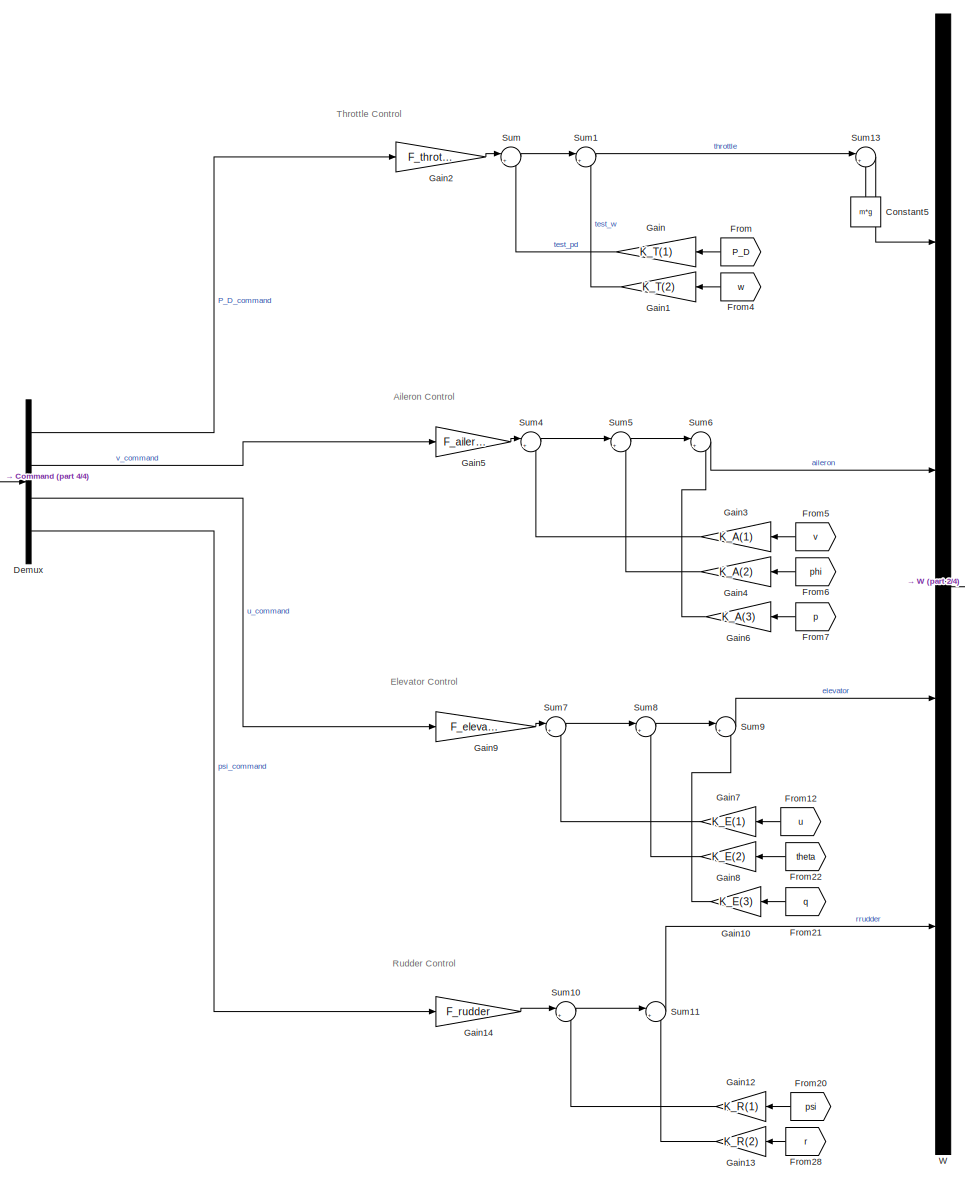
[diagram: root canvas - part 1/4, left side, full height]
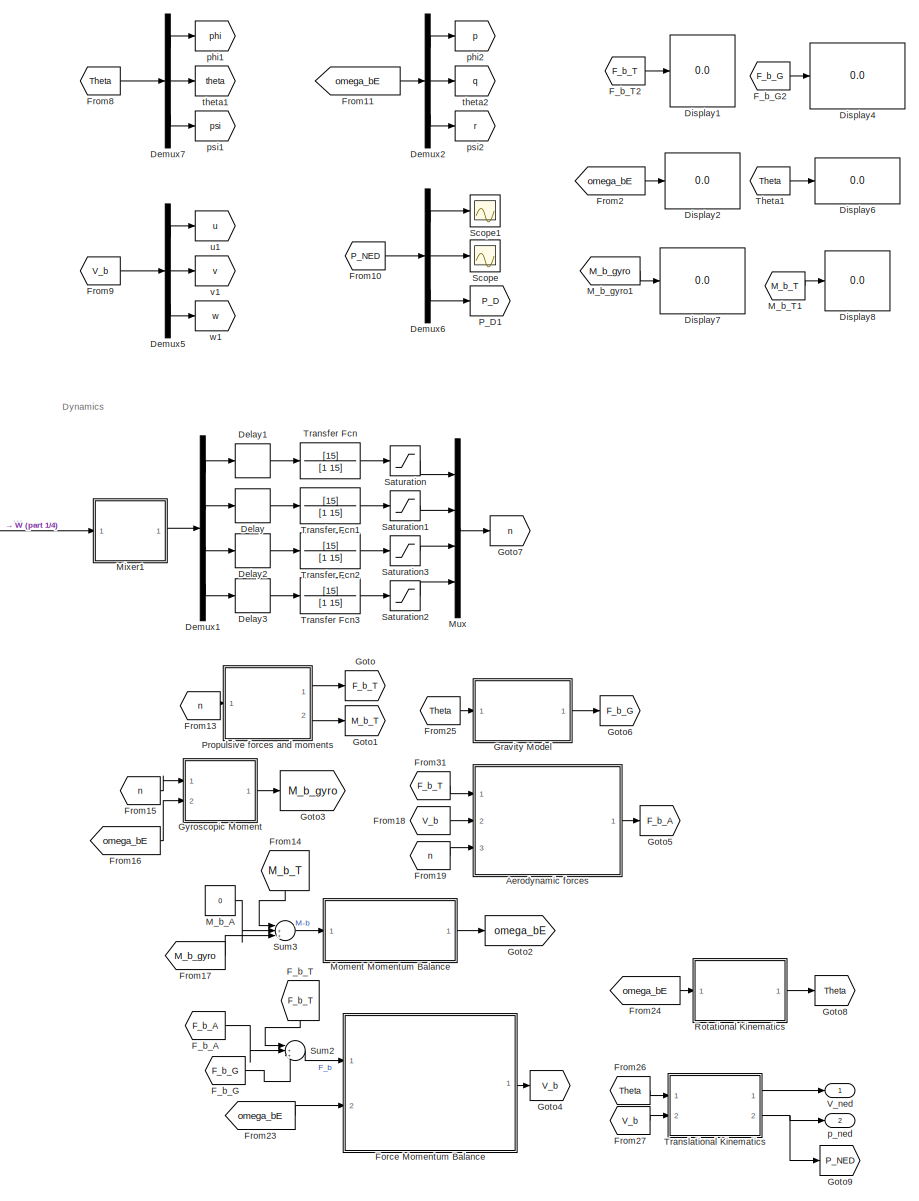
[diagram: root canvas - part 2/4, center side, full height]
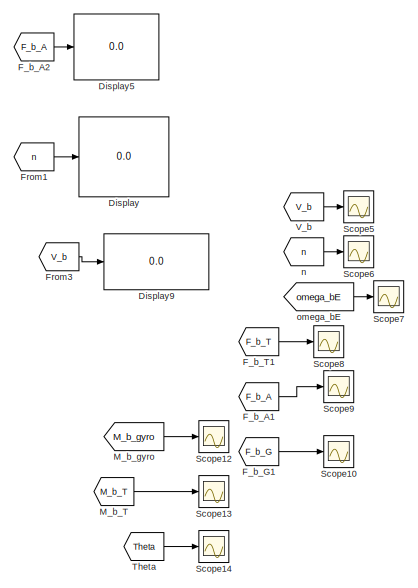
[diagram: root canvas - part 3/4, top right region]
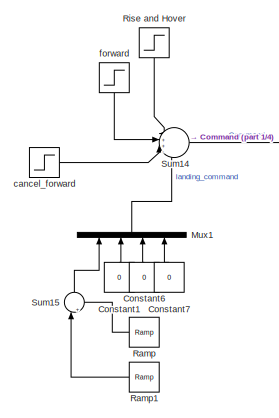
[diagram: root canvas - part 4/4, middle left region]
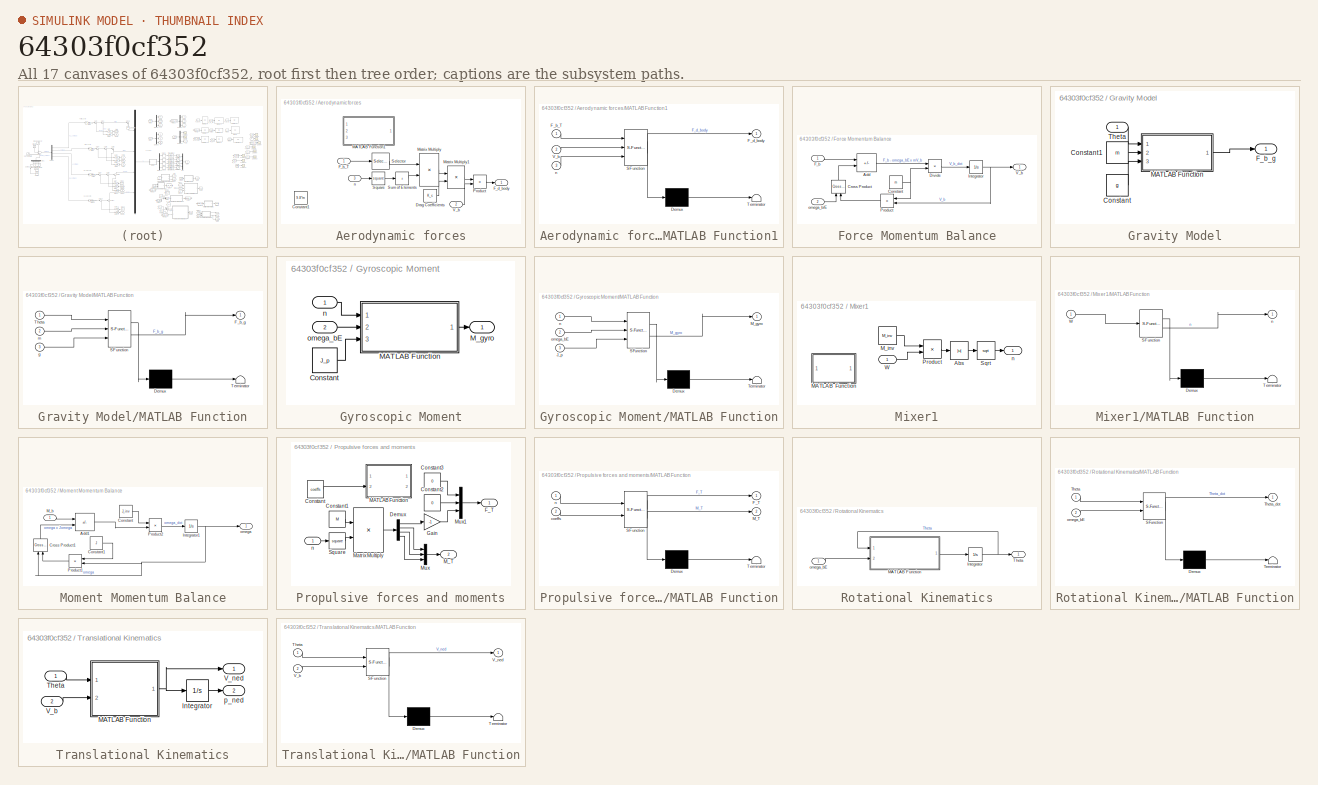
[diagram: thumbnail index - all 17 canvases of the model, root first then tree order]
MODEL slx_64303f0cf352
KIND model
CONFIG AbsTol = auto
CONFIG EnableMultiTasking = off
CONFIG FixedStep = auto
CONFIG MaxStep = auto
CONFIG MinStep = auto
CONFIG RelTol = 1e-3
CONFIG SampleTimeConstraint = Unconstrained
CONFIG SolverName = VariableStepAuto
CONFIG StartTime = 0.0
CONFIG StopTime = 30
BLOCK [SubSystem] Aerodynamic forces
  Ports = [3, 1]
  RequestExecContextInheritance = off
BLOCK [Constant] Aerodynamic forces/Constant1
  Commented = on
  Value = 9.8*m
BLOCK [Constant] Aerodynamic forces/Drag Coefficients
  Value = K_c
BLOCK [Inport] Aerodynamic forces/F_b_T
BLOCK [Outport] Aerodynamic forces/F_d_body
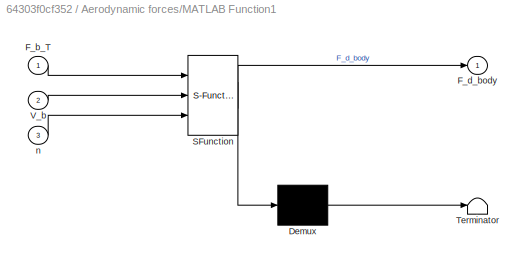
BLOCK [SubSystem] Aerodynamic forces/MATLAB Function1
  Commented = on
  ErrorFcn = Stateflow.Translate.translate
  PermitHierarchicalResolution = ExplicitOnly
  Ports = [3, 1]
  RequestExecContextInheritance = off
  SFBlockType = MATLAB Function
  TreatAsAtomicUnit = on
BLOCK [Demux] Aerodynamic forces/MATLAB Function1/ Demux 
  Outputs = 1
  Ports = [1, 1]
BLOCK [S-Function] Aerodynamic forces/MATLAB Function1/ SFunction 
  EnableBusSupport = on
  FunctionName = sf_sfun
  PortCounts = [3 2]
  Ports = [3, 2]
  SFcnIsStateOwnerBlock = off
  SFunctionDeploymentMode = off
  Tag = Stateflow S-Function 10
BLOCK [Terminator] Aerodynamic forces/MATLAB Function1/ Terminator 
BLOCK [Inport] Aerodynamic forces/MATLAB Function1/F_b_T
BLOCK [Outport] Aerodynamic forces/MATLAB Function1/F_d_body
BLOCK [Inport] Aerodynamic forces/MATLAB Function1/V_b
  Port = 2
BLOCK [Inport] Aerodynamic forces/MATLAB Function1/n
  Port = 3
BLOCK [Product] Aerodynamic forces/Matrix Multiply
  Ports = [2, 1]
BLOCK [Product] Aerodynamic forces/Matrix Multiply1
  Multiplication = Matrix(*)
  Ports = [2, 1]
BLOCK [Product] Aerodynamic forces/Product
  Ports = [2, 1]
BLOCK [Selector] Aerodynamic forces/Selector
  IndexOptions = Index vector (dialog)
  Indices = [3]
  InputPortWidth = 3
  OutputSizes = 1
  Ports = [1, 1]
BLOCK [Math] Aerodynamic forces/Square
  Operator = square
  Ports = [1, 1]
BLOCK [Sum] Aerodynamic forces/Sum of Elements
  IconShape = rectangular
  Inputs = +
  Ports = [1, 1]
BLOCK [Inport] Aerodynamic forces/V_b
  Port = 2
BLOCK [Inport] Aerodynamic forces/n
  Port = 3
BLOCK [Constant] Constant1
  NameLocation = right
  Value = 0
BLOCK [Constant] Constant5
  NameLocation = right
  Value = m*g
BLOCK [Constant] Constant6
  NameLocation = right
  Value = 0
BLOCK [Constant] Constant7
  NameLocation = right
  Value = 0
BLOCK [Delay] Delay
  InputPortMap = u0
  Ports = [1, 1]
  SampleTime = 1/200
BLOCK [Delay] Delay1
  InputPortMap = u0
  Ports = [1, 1]
  SampleTime = 1/200
BLOCK [Delay] Delay2
  InputPortMap = u0
  Ports = [1, 1]
  SampleTime = 1/200
BLOCK [Delay] Delay3
  InputPortMap = u0
  Ports = [1, 1]
  SampleTime = 1/200
BLOCK [Demux] Demux
  Ports = [1, 4]
BLOCK [Demux] Demux1
  Ports = [1, 4]
BLOCK [Demux] Demux2
  Outputs = 3
  Ports = [1, 3]
BLOCK [Demux] Demux5
  Outputs = 3
  Ports = [1, 3]
BLOCK [Demux] Demux6
  Outputs = 3
  Ports = [1, 3]
BLOCK [Demux] Demux7
  Outputs = 3
  Ports = [1, 3]
BLOCK [Display] Display
  Decimation = 1
  Ports = [1]
BLOCK [Display] Display1
  Decimation = 1
  Ports = [1]
BLOCK [Display] Display2
  Decimation = 1
  Ports = [1]
BLOCK [Display] Display4
  Decimation = 1
  Ports = [1]
BLOCK [Display] Display5
  Decimation = 1
  Ports = [1]
BLOCK [Display] Display6
  Decimation = 1
  Ports = [1]
BLOCK [Display] Display7
  Decimation = 1
  Ports = [1]
BLOCK [Display] Display8
  Decimation = 1
  Ports = [1]
BLOCK [Display] Display9
  Decimation = 1
  Ports = [1]
BLOCK [From] F_b_A
  GotoTag = F_b_A
BLOCK [From] F_b_A1
  GotoTag = F_b_A
BLOCK [From] F_b_A2
  GotoTag = F_b_A
BLOCK [From] F_b_G
  GotoTag = F_b_G
BLOCK [From] F_b_G1
  GotoTag = F_b_G
BLOCK [From] F_b_G2
  GotoTag = F_b_G
BLOCK [From] F_b_T
  GotoTag = F_b_T
  NameLocation = left
BLOCK [From] F_b_T1
  GotoTag = F_b_T
BLOCK [From] F_b_T2
  GotoTag = F_b_T
BLOCK [SubSystem] Force Momentum Balance
  Ports = [2, 1]
  RequestExecContextInheritance = off
BLOCK [Sum] Force Momentum Balance/Add
  IconShape = rectangular
  Inputs = +-
  Ports = [2, 1]
BLOCK [Constant] Force Momentum Balance/Constant
  Value = m
BLOCK [Reference] Force Momentum Balance/Cross Product  REF=vrlib/Utilities/Cross Product
  NameLocation = right
  Ports = [2, 1]
  SourceBlock = vrlib/Utilities/Cross Product
  SourceProductBaseCode = SL
  SourceType = Cross Product
BLOCK [Product] Force Momentum Balance/Divide
  Inputs = */
  Ports = [2, 1]
BLOCK [Inport] Force Momentum Balance/F_b
BLOCK [Integrator] Force Momentum Balance/Integrator
  AttributesFormatString = %<InitialCondition>
  InitialCondition = V_b_0
  Ports = [1, 1]
BLOCK [Product] Force Momentum Balance/Product
  NameLocation = top
  Ports = [2, 1]
BLOCK [Outport] Force Momentum Balance/V_b
BLOCK [Inport] Force Momentum Balance/omega_b//E
  Port = 2
BLOCK [From] From
  GotoTag = P_D
  NameLocation = top
BLOCK [From] From1
  GotoTag = n
BLOCK [From] From10
  GotoTag = P_NED
BLOCK [From] From11
  GotoTag = omega_bE
BLOCK [From] From12
  GotoTag = u
  NameLocation = top
BLOCK [From] From13
  GotoTag = n
BLOCK [From] From14
  GotoTag = M_b_T
  NameLocation = left
BLOCK [From] From15
  GotoTag = n
BLOCK [From] From16
  GotoTag = omega_bE
BLOCK [From] From17
  GotoTag = M_b_gyro
BLOCK [From] From18
  GotoTag = V_b
BLOCK [From] From19
  GotoTag = n
BLOCK [From] From2
  GotoTag = omega_bE
BLOCK [From] From20
  GotoTag = psi
  NameLocation = top
BLOCK [From] From21
  GotoTag = q
  NameLocation = top
BLOCK [From] From22
  GotoTag = theta
  NameLocation = top
BLOCK [From] From23
  GotoTag = omega_bE
BLOCK [From] From24
  GotoTag = omega_bE
BLOCK [From] From25
  GotoTag = Theta
BLOCK [From] From26
  GotoTag = Theta
BLOCK [From] From27
  GotoTag = V_b
BLOCK [From] From28
  GotoTag = r
  NameLocation = top
BLOCK [From] From3
  GotoTag = V_b
BLOCK [From] From31
  GotoTag = F_b_T
BLOCK [From] From4
  GotoTag = w
  NameLocation = top
BLOCK [From] From5
  GotoTag = v
  NameLocation = top
BLOCK [From] From6
  GotoTag = phi
  NameLocation = top
BLOCK [From] From7
  GotoTag = p
  NameLocation = top
BLOCK [From] From8
  GotoTag = Theta
BLOCK [From] From9
  GotoTag = V_b
BLOCK [Gain] Gain
  Gain = K_T(1)
BLOCK [Gain] Gain1
  Gain = K_T(2)
BLOCK [Gain] Gain10
  Gain = K_E(3)
BLOCK [Gain] Gain12
  Gain = K_R(1)
BLOCK [Gain] Gain13
  Gain = K_R(2)
BLOCK [Gain] Gain14
  Gain = F_rudder
BLOCK [Gain] Gain2
  Gain = F_throttle
BLOCK [Gain] Gain3
  Gain = K_A(1)
BLOCK [Gain] Gain4
  Gain = K_A(2)
BLOCK [Gain] Gain5
  Gain = F_aileron
BLOCK [Gain] Gain6
  Gain = K_A(3)
BLOCK [Gain] Gain7
  Gain = K_E(1)
BLOCK [Gain] Gain8
  Gain = K_E(2)
BLOCK [Gain] Gain9
  Gain = F_elevator
BLOCK [Goto] Goto
  GotoTag = F_b_T
BLOCK [Goto] Goto1
  GotoTag = M_b_T
BLOCK [Goto] Goto2
  GotoTag = omega_bE
BLOCK [Goto] Goto3
  GotoTag = M_b_gyro
BLOCK [Goto] Goto4
  GotoTag = V_b
BLOCK [Goto] Goto5
  GotoTag = F_b_A
BLOCK [Goto] Goto6
  GotoTag = F_b_G
BLOCK [Goto] Goto7
  GotoTag = n
BLOCK [Goto] Goto8
  GotoTag = Theta
BLOCK [Goto] Goto9
  GotoTag = P_NED
BLOCK [SubSystem] Gravity Model
  Ports = [1, 1]
  RequestExecContextInheritance = off
BLOCK [Constant] Gravity Model/Constant
  Value = g
BLOCK [Constant] Gravity Model/Constant1
  Value = m
BLOCK [Outport] Gravity Model/F_b_g
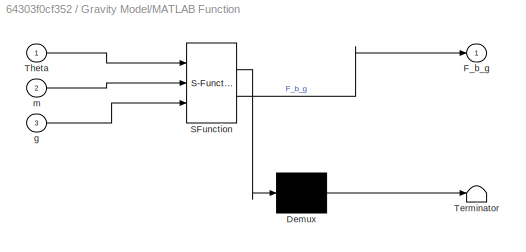
BLOCK [SubSystem] Gravity Model/MATLAB Function
  ErrorFcn = Stateflow.Translate.translate
  PermitHierarchicalResolution = ExplicitOnly
  Ports = [3, 1]
  RequestExecContextInheritance = off
  SFBlockType = MATLAB Function
  TreatAsAtomicUnit = on
BLOCK [Demux] Gravity Model/MATLAB Function/ Demux 
  Outputs = 1
  Ports = [1, 1]
BLOCK [S-Function] Gravity Model/MATLAB Function/ SFunction 
  EnableBusSupport = on
  FunctionName = sf_sfun
  PortCounts = [3 2]
  Ports = [3, 2]
  SFcnIsStateOwnerBlock = off
  SFunctionDeploymentMode = off
  Tag = Stateflow S-Function 12
BLOCK [Terminator] Gravity Model/MATLAB Function/ Terminator 
BLOCK [Outport] Gravity Model/MATLAB Function/F_b_g
BLOCK [Inport] Gravity Model/MATLAB Function/Theta
BLOCK [Inport] Gravity Model/MATLAB Function/g
  Port = 3
BLOCK [Inport] Gravity Model/MATLAB Function/m
  Port = 2
BLOCK [Inport] Gravity Model/Theta
BLOCK [SubSystem] Gyroscopic Moment
  Ports = [2, 1]
  RequestExecContextInheritance = off
BLOCK [Constant] Gyroscopic Moment/Constant
  Value = J_p
BLOCK [SubSystem] Gyroscopic Moment/MATLAB Function
  ErrorFcn = Stateflow.Translate.translate
  PermitHierarchicalResolution = ExplicitOnly
  Ports = [3, 1]
  RequestExecContextInheritance = off
  SFBlockType = MATLAB Function
  TreatAsAtomicUnit = on
BLOCK [Demux] Gyroscopic Moment/MATLAB Function/ Demux 
  Outputs = 1
  Ports = [1, 1]
BLOCK [S-Function] Gyroscopic Moment/MATLAB Function/ SFunction 
  EnableBusSupport = on
  FunctionName = sf_sfun
  PortCounts = [3 2]
  Ports = [3, 2]
  SFcnIsStateOwnerBlock = off
  SFunctionDeploymentMode = off
  Tag = Stateflow S-Function 11
BLOCK [Terminator] Gyroscopic Moment/MATLAB Function/ Terminator 
BLOCK [Inport] Gyroscopic Moment/MATLAB Function/J_p
  Port = 3
BLOCK [Outport] Gyroscopic Moment/MATLAB Function/M_gyro
BLOCK [Inport] Gyroscopic Moment/MATLAB Function/n
BLOCK [Inport] Gyroscopic Moment/MATLAB Function/omega_bE
  Port = 2
BLOCK [Outport] Gyroscopic Moment/M_gyro
BLOCK [Inport] Gyroscopic Moment/n
BLOCK [Inport] Gyroscopic Moment/omega_bE
  Port = 2
BLOCK [Constant] M_b_A
  Value = 0
BLOCK [From] M_b_T
  GotoTag = M_b_T
BLOCK [From] M_b_T1
  GotoTag = M_b_T
BLOCK [From] M_b_gyro
  GotoTag = M_b_gyro
BLOCK [From] M_b_gyro1
  GotoTag = M_b_gyro
BLOCK [SubSystem] Mixer1
  Ports = [1, 1]
  RequestExecContextInheritance = off
BLOCK [Abs] Mixer1/Abs
  SaturateOnIntegerOverflow = off
BLOCK [SubSystem] Mixer1/MATLAB Function
  Commented = on
  ErrorFcn = Stateflow.Translate.translate
  PermitHierarchicalResolution = ExplicitOnly
  Ports = [1, 1]
  RequestExecContextInheritance = off
  SFBlockType = MATLAB Function
  TreatAsAtomicUnit = on
BLOCK [Demux] Mixer1/MATLAB Function/ Demux 
  Outputs = 1
  Ports = [1, 1]
BLOCK [S-Function] Mixer1/MATLAB Function/ SFunction 
  EnableBusSupport = on
  FunctionName = sf_sfun
  PortCounts = [1 2]
  Ports = [1, 2]
  SFcnIsStateOwnerBlock = off
  SFunctionDeploymentMode = off
  Tag = Stateflow S-Function 8
BLOCK [Terminator] Mixer1/MATLAB Function/ Terminator 
BLOCK [Inport] Mixer1/MATLAB Function/W
BLOCK [Outport] Mixer1/MATLAB Function/n
BLOCK [Constant] Mixer1/M_inv
  Value = M_inv
BLOCK [Product] Mixer1/Product
  Multiplication = Matrix(*)
  Ports = [2, 1]
BLOCK [Sqrt] Mixer1/Sqrt
BLOCK [Inport] Mixer1/W
BLOCK [Outport] Mixer1/n
BLOCK [SubSystem] Moment Momentum Balance
  Ports = [1, 1]
  RequestExecContextInheritance = off
BLOCK [Sum] Moment Momentum Balance/Add1
  IconShape = rectangular
  Inputs = +-
  Ports = [2, 1]
BLOCK [Constant] Moment Momentum Balance/Constant
  Value = J_inv
BLOCK [Constant] Moment Momentum Balance/Constant1
  Value = J
BLOCK [Reference] Moment Momentum Balance/Cross Product1  REF=vrlib/Utilities/Cross Product
  NameLocation = right
  Ports = [2, 1]
  SourceBlock = vrlib/Utilities/Cross Product
  SourceProductBaseCode = SL
  SourceType = Cross Product
BLOCK [Integrator] Moment Momentum Balance/Integrator1
  AttributesFormatString = %<InitialCondition>
  InitialCondition = omega_0
  Ports = [1, 1]
BLOCK [Inport] Moment Momentum Balance/M_b
BLOCK [Product] Moment Momentum Balance/Product1
  Multiplication = Matrix(*)
  NameLocation = top
  Ports = [2, 1]
BLOCK [Product] Moment Momentum Balance/Product2
  Multiplication = Matrix(*)
  Ports = [2, 1]
BLOCK [Outport] Moment Momentum Balance/omega
BLOCK [Mux] Mux
  DisplayOption = bar
  Ports = [4, 1]
BLOCK [Mux] Mux1
  DisplayOption = bar
  NameLocation = right
  Ports = [4, 1]
BLOCK [Goto] P_D1
  GotoTag = P_D
BLOCK [SubSystem] Propulsive forces and moments
  Ports = [1, 2]
  RequestExecContextInheritance = off
BLOCK [Constant] Propulsive forces and moments/Constant
  Commented = on
  Value = coeffs
BLOCK [Constant] Propulsive forces and moments/Constant1
  Value = M
BLOCK [Constant] Propulsive forces and moments/Constant2
  Value = 0
BLOCK [Constant] Propulsive forces and moments/Constant3
  Value = 0
BLOCK [Demux] Propulsive forces and moments/Demux
  Ports = [1, 4]
BLOCK [Outport] Propulsive forces and moments/F_T
BLOCK [Gain] Propulsive forces and moments/Gain
  Gain = -1
BLOCK [SubSystem] Propulsive forces and moments/MATLAB Function
  Commented = on
  ErrorFcn = Stateflow.Translate.translate
  PermitHierarchicalResolution = ExplicitOnly
  Ports = [2, 2]
  RequestExecContextInheritance = off
  SFBlockType = MATLAB Function
  TreatAsAtomicUnit = on
BLOCK [Demux] Propulsive forces and moments/MATLAB Function/ Demux 
  Outputs = 1
  Ports = [1, 1]
BLOCK [S-Function] Propulsive forces and moments/MATLAB Function/ SFunction 
  EnableBusSupport = on
  FunctionName = sf_sfun
  PortCounts = [2 3]
  Ports = [2, 3]
  SFcnIsStateOwnerBlock = off
  SFunctionDeploymentMode = off
  Tag = Stateflow S-Function 9
BLOCK [Terminator] Propulsive forces and moments/MATLAB Function/ Terminator 
BLOCK [Outport] Propulsive forces and moments/MATLAB Function/F_T
BLOCK [Outport] Propulsive forces and moments/MATLAB Function/M_T
  Port = 2
BLOCK [Inport] Propulsive forces and moments/MATLAB Function/coeffs
  Port = 2
BLOCK [Inport] Propulsive forces and moments/MATLAB Function/n
BLOCK [Outport] Propulsive forces and moments/M_T
  Port = 2
BLOCK [Product] Propulsive forces and moments/Matrix Multiply
  Multiplication = Matrix(*)
  Ports = [2, 1]
BLOCK [Mux] Propulsive forces and moments/Mux
  DisplayOption = bar
  Inputs = 3
  Ports = [3, 1]
BLOCK [Mux] Propulsive forces and moments/Mux1
  DisplayOption = bar
  Inputs = 3
  Ports = [3, 1]
BLOCK [Math] Propulsive forces and moments/Square
  Operator = square
  Ports = [1, 1]
BLOCK [Inport] Propulsive forces and moments/n
BLOCK [Reference] Ramp  REF=simulink/Sources/Ramp
  NameLocation = top
  Ports = [0, 1]
  SourceBlock = simulink/Sources/Ramp
  SourceProductBaseCode = SL
  SourceType = Ramp
BLOCK [Reference] Ramp1  REF=simulink/Sources/Ramp
  NameLocation = top
  Ports = [0, 1]
  SourceBlock = simulink/Sources/Ramp
  SourceProductBaseCode = SL
  SourceType = Ramp
BLOCK [Step] Rise and Hover
  After = cmd_hover
  Before = cmd_0
  NameLocation = left
  SampleTime = 0
BLOCK [SubSystem] Rotational Kinematics
  Ports = [1, 1]
  RequestExecContextInheritance = off
BLOCK [Integrator] Rotational Kinematics/Integrator
  AttributesFormatString = %<InitialCondition>
  InitialCondition = Theta_0
  Ports = [1, 1]
BLOCK [SubSystem] Rotational Kinematics/MATLAB Function
  ErrorFcn = Stateflow.Translate.translate
  PermitHierarchicalResolution = ExplicitOnly
  Ports = [2, 1]
  RequestExecContextInheritance = off
  SFBlockType = MATLAB Function
  TreatAsAtomicUnit = on
BLOCK [Demux] Rotational Kinematics/MATLAB Function/ Demux 
  Outputs = 1
  Ports = [1, 1]
BLOCK [S-Function] Rotational Kinematics/MATLAB Function/ SFunction 
  EnableBusSupport = on
  FunctionName = sf_sfun
  PortCounts = [2 2]
  Ports = [2, 2]
  SFcnIsStateOwnerBlock = off
  SFunctionDeploymentMode = off
  Tag = Stateflow S-Function 13
BLOCK [Terminator] Rotational Kinematics/MATLAB Function/ Terminator 
BLOCK [Inport] Rotational Kinematics/MATLAB Function/Theta
BLOCK [Outport] Rotational Kinematics/MATLAB Function/Theta_dot
BLOCK [Inport] Rotational Kinematics/MATLAB Function/omega_bE
  Port = 2
BLOCK [Outport] Rotational Kinematics/Theta
BLOCK [Inport] Rotational Kinematics/omega_bE
BLOCK [Saturate] Saturation
  LowerLimit = 0
  UpperLimit = 500
BLOCK [Saturate] Saturation1
  LowerLimit = 0
  UpperLimit = 500
BLOCK [Saturate] Saturation2
  LowerLimit = 0
  UpperLimit = 500
BLOCK [Saturate] Saturation3
  LowerLimit = 0
  UpperLimit = 500
BLOCK [Scope] Scope
  Commented = on
  Floating = off
  NumInputPorts = 1
  Ports = [1]
  ScopeSpecificationString = Simulink.scopes.TimeScopeBlockCfg('CurrentConfiguration', extmgr.ConfigurationSet(extmgr.Configuration('Core','General UI',true),extmgr.Configuration('Core','Source UI',true),extmgr.Configuration('Sources','WiredSimulink',true,'DataLoggingVariableName','ScopeData1'),extmgr.Configuration('Visuals','Time Domain',true),extmgr.Configuration('Tools','Plot Navigation',true),extmgr.Configuration('Tools',...<+40ch>
BLOCK [Scope] Scope1
  Commented = on
  Floating = off
  NumInputPorts = 1
  Ports = [1]
  ScopeSpecificationString = Simulink.scopes.TimeScopeBlockCfg('CurrentConfiguration', extmgr.ConfigurationSet(extmgr.Configuration('Core','General UI',true),extmgr.Configuration('Core','Source UI',true),extmgr.Configuration('Sources','WiredSimulink',true,'DataLoggingVariableName','ScopeData2'),extmgr.Configuration('Visuals','Time Domain',true),extmgr.Configuration('Tools','Plot Navigation',true),extmgr.Configuration('Tools',...<+40ch>
BLOCK [Scope] Scope10
  Floating = off
  NumInputPorts = 1
  Ports = [1]
  ScopeSpecificationString = Simulink.scopes.TimeScopeBlockCfg('CurrentConfiguration', extmgr.ConfigurationSet(extmgr.Configuration('Core','General UI',true),extmgr.Configuration('Core','Source UI',true),extmgr.Configuration('Sources','WiredSimulink',true,'DataLoggingVariableName','ScopeData10'),extmgr.Configuration('Visuals','Time Domain',true,'SerializedDisplays',{struct('MinYLimReal','-0.06461','MaxYLimReal','0.58146','YLa...<+1393ch>
BLOCK [Scope] Scope12
  Floating = off
  NumInputPorts = 1
  Ports = [1]
  ScopeSpecificationString = Simulink.scopes.TimeScopeBlockCfg('CurrentConfiguration', extmgr.ConfigurationSet(extmgr.Configuration('Core','General UI',true),extmgr.Configuration('Core','Source UI',true),extmgr.Configuration('Sources','WiredSimulink',true,'DataLoggingVariableName','ScopeData12'),extmgr.Configuration('Visuals','Time Domain',true,'SerializedDisplays',{struct('MinYLimReal','-1.00000','MaxYLimReal','1.00000','YLa...<+1396ch>
BLOCK [Scope] Scope13
  Floating = off
  NumInputPorts = 1
  Ports = [1]
  ScopeSpecificationString = Simulink.scopes.TimeScopeBlockCfg('CurrentConfiguration', extmgr.ConfigurationSet(extmgr.Configuration('Core','General UI',true),extmgr.Configuration('Core','Source UI',true),extmgr.Configuration('Sources','WiredSimulink',true,'DataLoggingVariableName','ScopeData13'),extmgr.Configuration('Visuals','Time Domain',true,'SerializedDisplays',{struct('MinYLimReal','-1.00000','MaxYLimReal','1.00000','YLa...<+1387ch>
BLOCK [Scope] Scope14
  Floating = off
  NumInputPorts = 1
  Ports = [1]
  ScopeSpecificationString = Simulink.scopes.TimeScopeBlockCfg('CurrentConfiguration', extmgr.ConfigurationSet(extmgr.Configuration('Core','General UI',true),extmgr.Configuration('Core','Source UI',true),extmgr.Configuration('Sources','WiredSimulink',true,'DataLoggingVariableName','ScopeData14'),extmgr.Configuration('Visuals','Time Domain',true,'SerializedDisplays',{struct('MinYLimReal','-0.76853','MaxYLimReal','0.08539','YLa...<+1393ch>
BLOCK [Scope] Scope5
  Floating = off
  NumInputPorts = 1
  Ports = [1]
  ScopeSpecificationString = Simulink.scopes.TimeScopeBlockCfg('CurrentConfiguration', extmgr.ConfigurationSet(extmgr.Configuration('Core','General UI',true),extmgr.Configuration('Core','Source UI',true),extmgr.Configuration('Sources','WiredSimulink',true,'DataLoggingVariableName','ScopeData5'),extmgr.Configuration('Visuals','Time Domain',true,'SerializedDisplays',{struct('MinYLimReal','-0.00000000071','MaxYLimReal','0.000000...<+1434ch>
BLOCK [Scope] Scope6
  Floating = off
  NumInputPorts = 1
  Ports = [1]
  ScopeSpecificationString = Simulink.scopes.TimeScopeBlockCfg('CurrentConfiguration', extmgr.ConfigurationSet(extmgr.Configuration('Core','General UI',true),extmgr.Configuration('Core','Source UI',true),extmgr.Configuration('Sources','WiredSimulink',true,'DataLoggingVariableName','ScopeData6'),extmgr.Configuration('Visuals','Time Domain',true,'SerializedDisplays',{struct('MinYLimReal','44.55172','MaxYLimReal','461.24553','YL...<+1410ch>
BLOCK [Scope] Scope7
  Floating = off
  NumInputPorts = 1
  Ports = [1]
  ScopeSpecificationString = Simulink.scopes.TimeScopeBlockCfg('CurrentConfiguration', extmgr.ConfigurationSet(extmgr.Configuration('Core','General UI',true),extmgr.Configuration('Core','Source UI',true),extmgr.Configuration('Sources','WiredSimulink',true,'DataLoggingVariableName','ScopeData7'),extmgr.Configuration('Visuals','Time Domain',true,'SerializedDisplays',{struct('MinYLimReal','-1.00000','MaxYLimReal','1.00000','YLab...<+1392ch>
BLOCK [Scope] Scope8
  Floating = off
  NumInputPorts = 1
  Ports = [1]
  ScopeSpecificationString = Simulink.scopes.TimeScopeBlockCfg('CurrentConfiguration', extmgr.ConfigurationSet(extmgr.Configuration('Core','General UI',true),extmgr.Configuration('Core','Source UI',true),extmgr.Configuration('Sources','WiredSimulink',true,'DataLoggingVariableName','ScopeData8'),extmgr.Configuration('Visuals','Time Domain',true,'SerializedDisplays',{struct('MinYLimReal','-0.7497','MaxYLimReal','0.0833','YLabel...<+1380ch>
BLOCK [Scope] Scope9
  Floating = off
  NumInputPorts = 1
  Ports = [1]
  ScopeSpecificationString = Simulink.scopes.TimeScopeBlockCfg('CurrentConfiguration', extmgr.ConfigurationSet(extmgr.Configuration('Core','General UI',true),extmgr.Configuration('Core','Source UI',true),extmgr.Configuration('Sources','WiredSimulink',true,'DataLoggingVariableName','ScopeData9'),extmgr.Configuration('Visuals','Time Domain',true,'SerializedDisplays',{struct('MinYLimReal','-0.47323','MaxYLimReal','0.05258','YLab...<+1401ch>
BLOCK [Sum] Sum
  Inputs = |+-
  Ports = [2, 1]
BLOCK [Sum] Sum1
  Inputs = |+-
  Ports = [2, 1]
BLOCK [Sum] Sum10
  Inputs = |+-
  Ports = [2, 1]
BLOCK [Sum] Sum11
  Inputs = |+-
  Ports = [2, 1]
BLOCK [Sum] Sum13
  Inputs = |++
  Ports = [2, 1]
BLOCK [Sum] Sum14
  Inputs = |++-+
  Ports = [4, 1]
BLOCK [Sum] Sum15
  Inputs = |++
  NameLocation = right
  Ports = [2, 1]
BLOCK [Sum] Sum2
  Inputs = |+++
  Ports = [3, 1]
BLOCK [Sum] Sum3
  Inputs = |+++
  Ports = [3, 1]
BLOCK [Sum] Sum4
  Inputs = |+-
  Ports = [2, 1]
BLOCK [Sum] Sum5
  Inputs = |+-
  Ports = [2, 1]
BLOCK [Sum] Sum6
  Inputs = |+-
  Ports = [2, 1]
BLOCK [Sum] Sum7
  Inputs = |+-
  Ports = [2, 1]
BLOCK [Sum] Sum8
  Inputs = |+-
  Ports = [2, 1]
BLOCK [Sum] Sum9
  Inputs = |+-
  Ports = [2, 1]
BLOCK [From] Theta
  GotoTag = Theta
BLOCK [From] Theta1
  GotoTag = Theta
BLOCK [TransferFcn] Transfer Fcn
  Denominator = [1 15]
  Numerator = [15]
BLOCK [TransferFcn] Transfer Fcn1
  Denominator = [1 15]
  Numerator = [15]
BLOCK [TransferFcn] Transfer Fcn2
  Denominator = [1 15]
  Numerator = [15]
BLOCK [TransferFcn] Transfer Fcn3
  Denominator = [1 15]
  Numerator = [15]
BLOCK [SubSystem] Translational Kinematics
  Ports = [2, 2]
  RequestExecContextInheritance = off
BLOCK [Integrator] Translational Kinematics/Integrator
  AttributesFormatString = %<InitialCondition>
  InitialCondition = p_ned_0
  Ports = [1, 1]
BLOCK [SubSystem] Translational Kinematics/MATLAB Function
  ErrorFcn = Stateflow.Translate.translate
  PermitHierarchicalResolution = ExplicitOnly
  Ports = [2, 1]
  RequestExecContextInheritance = off
  SFBlockType = MATLAB Function
  TreatAsAtomicUnit = on
BLOCK [Demux] Translational Kinematics/MATLAB Function/ Demux 
  Outputs = 1
  Ports = [1, 1]
BLOCK [S-Function] Translational Kinematics/MATLAB Function/ SFunction 
  EnableBusSupport = on
  FunctionName = sf_sfun
  PortCounts = [2 2]
  Ports = [2, 2]
  SFcnIsStateOwnerBlock = off
  SFunctionDeploymentMode = off
  Tag = Stateflow S-Function 14
BLOCK [Terminator] Translational Kinematics/MATLAB Function/ Terminator 
BLOCK [Inport] Translational Kinematics/MATLAB Function/Theta
BLOCK [Inport] Translational Kinematics/MATLAB Function/V_b
  Port = 2
BLOCK [Outport] Translational Kinematics/MATLAB Function/V_ned
BLOCK [Inport] Translational Kinematics/Theta
BLOCK [Inport] Translational Kinematics/V_b
  Port = 2
BLOCK [Outport] Translational Kinematics/V_ned
BLOCK [Outport] Translational Kinematics/p_ned
  Port = 2
BLOCK [From] V_b
  GotoTag = V_b
BLOCK [Outport] V_ned
BLOCK [Mux] W
  DisplayOption = bar
  Ports = [4, 1]
BLOCK [Step] cancel_forward
  After = cmd_forward
  SampleTime = 0
  Time = 16
BLOCK [Step] forward
  After = cmd_forward
  NameLocation = left
  SampleTime = 0
  Time = 6
BLOCK [From] n
  GotoTag = n
BLOCK [From] omega_bE
  GotoTag = omega_bE
BLOCK [Outport] p_ned
  Port = 2
BLOCK [Goto] phi1
  GotoTag = phi
BLOCK [Goto] phi2
  GotoTag = p
BLOCK [Goto] psi1
  GotoTag = psi
BLOCK [Goto] psi2
  GotoTag = r
BLOCK [Goto] theta1
  GotoTag = theta
BLOCK [Goto] theta2
  GotoTag = q
BLOCK [Goto] u1
  GotoTag = u
BLOCK [Goto] v1
  GotoTag = v
BLOCK [Goto] w1
  GotoTag = w
ANNOTATION (root): Aileron Control
ANNOTATION (root): Dynamics
ANNOTATION (root): Elevator Control
ANNOTATION (root): Rudder Control
ANNOTATION (root): Throttle Control
LINE Aerodynamic forces/Drag Coefficients:1 -> Aerodynamic forces/Matrix Multiply1:2
LINE Aerodynamic forces/F_b_T:1 -> Aerodynamic forces/Selector:1
LINE Aerodynamic forces/Matrix Multiply1:1 -> Aerodynamic forces/Product:1
LINE Aerodynamic forces/Matrix Multiply:1 -> Aerodynamic forces/Matrix Multiply1:1
LINE Aerodynamic forces/Product:1 -> Aerodynamic forces/F_d_body:1
LINE Aerodynamic forces/Selector:1 -> Aerodynamic forces/Matrix Multiply:1
LINE Aerodynamic forces/Square:1 -> Aerodynamic forces/Sum of Elements:1
LINE Aerodynamic forces/Sum of Elements:1 -> Aerodynamic forces/Matrix Multiply:2
LINE Aerodynamic forces/V_b:1 -> Aerodynamic forces/Product:2
LINE Aerodynamic forces/n:1 -> Aerodynamic forces/Square:1
LINE Aerodynamic forces:1 -> Goto5:1
LINE Constant1:1 -> Mux1:2
LINE Constant5:1 -> Sum13:2
LINE Constant6:1 -> Mux1:3
LINE Constant7:1 -> Mux1:4
LINE Delay1:1 -> Transfer Fcn:1
LINE Delay2:1 -> Transfer Fcn2:1
LINE Delay3:1 -> Transfer Fcn3:1
LINE Delay:1 -> Transfer Fcn1:1
LINE Demux1:1 -> Delay1:1
LINE Demux1:2 -> Delay:1
LINE Demux1:3 -> Delay2:1
LINE Demux1:4 -> Delay3:1
LINE Demux2:1 -> phi2:1
LINE Demux2:2 -> theta2:1
LINE Demux2:3 -> psi2:1
LINE Demux5:1 -> u1:1
LINE Demux5:2 -> v1:1
LINE Demux5:3 -> w1:1
LINE Demux6:1 -> Scope1:1
LINE Demux6:2 -> Scope:1
LINE Demux6:3 -> P_D1:1
LINE Demux7:1 -> phi1:1
LINE Demux7:2 -> theta1:1
LINE Demux7:3 -> psi1:1
LINE Demux:1 -> Gain2:1
LINE Demux:2 -> Gain5:1
LINE Demux:3 -> Gain9:1
LINE Demux:4 -> Gain14:1
LINE F_b_A1:1 -> Scope9:1
LINE F_b_A2:1 -> Display5:1
LINE F_b_A:1 -> Sum2:2
LINE F_b_G1:1 -> Scope10:1
LINE F_b_G2:1 -> Display4:1
LINE F_b_G:1 -> Sum2:3
LINE F_b_T1:1 -> Scope8:1
LINE F_b_T2:1 -> Display1:1
LINE F_b_T:1 -> Sum2:1
LINE Force Momentum Balance/Add:1 -> Force Momentum Balance/Divide:1
NET Force Momentum Balance/Constant:1 -> Force Momentum Balance/Divide:2, Force Momentum Balance/Product:1
LINE Force Momentum Balance/Cross Product:1 -> Force Momentum Balance/Add:2
LINE Force Momentum Balance/Divide:1 -> Force Momentum Balance/Integrator:1
LINE Force Momentum Balance/F_b:1 -> Force Momentum Balance/Add:1
NET Force Momentum Balance/Integrator:1 -> Force Momentum Balance/Product:2, Force Momentum Balance/V_b:1
LINE Force Momentum Balance/Product:1 -> Force Momentum Balance/Cross Product:2
LINE Force Momentum Balance/omega_b//E:1 -> Force Momentum Balance/Cross Product:1
LINE Force Momentum Balance:1 -> Goto4:1
LINE From10:1 -> Demux6:1
LINE From11:1 -> Demux2:1
LINE From12:1 -> Gain7:1
LINE From13:1 -> Propulsive forces and moments:1
LINE From14:1 -> Sum3:1
LINE From15:1 -> Gyroscopic Moment:1
LINE From16:1 -> Gyroscopic Moment:2
LINE From17:1 -> Sum3:3
LINE From18:1 -> Aerodynamic forces:2
LINE From19:1 -> Aerodynamic forces:3
LINE From1:1 -> Display:1
LINE From20:1 -> Gain12:1
LINE From21:1 -> Gain10:1
LINE From22:1 -> Gain8:1
LINE From23:1 -> Force Momentum Balance:2
LINE From24:1 -> Rotational Kinematics:1
LINE From25:1 -> Gravity Model:1
LINE From26:1 -> Translational Kinematics:1
LINE From27:1 -> Translational Kinematics:2
LINE From28:1 -> Gain13:1
LINE From2:1 -> Display2:1
LINE From31:1 -> Aerodynamic forces:1
LINE From3:1 -> Display9:1
LINE From4:1 -> Gain1:1
LINE From5:1 -> Gain3:1
LINE From6:1 -> Gain4:1
LINE From7:1 -> Gain6:1
LINE From8:1 -> Demux7:1
LINE From9:1 -> Demux5:1
LINE From:1 -> Gain:1
LINE Gain10:1 -> Sum9:2
LINE Gain12:1 -> Sum10:2
LINE Gain13:1 -> Sum11:2
LINE Gain14:1 -> Sum10:1
LINE Gain1:1 -> Sum1:2
LINE Gain2:1 -> Sum:1
LINE Gain3:1 -> Sum4:2
LINE Gain4:1 -> Sum5:2
LINE Gain5:1 -> Sum4:1
LINE Gain6:1 -> Sum6:2
LINE Gain7:1 -> Sum7:2
LINE Gain8:1 -> Sum8:2
LINE Gain9:1 -> Sum7:1
LINE Gain:1 -> Sum:2
LINE Gravity Model/Constant1:1 -> Gravity Model/MATLAB Function:2
LINE Gravity Model/Constant:1 -> Gravity Model/MATLAB Function:3
LINE Gravity Model/MATLAB Function:1 -> Gravity Model/F_b_g:1
LINE Gravity Model/Theta:1 -> Gravity Model/MATLAB Function:1
LINE Gravity Model:1 -> Goto6:1
LINE Gyroscopic Moment/Constant:1 -> Gyroscopic Moment/MATLAB Function:3
LINE Gyroscopic Moment/MATLAB Function:1 -> Gyroscopic Moment/M_gyro:1
LINE Gyroscopic Moment/n:1 -> Gyroscopic Moment/MATLAB Function:1
LINE Gyroscopic Moment/omega_bE:1 -> Gyroscopic Moment/MATLAB Function:2
LINE Gyroscopic Moment:1 -> Goto3:1
LINE M_b_A:1 -> Sum3:2
LINE M_b_T1:1 -> Display8:1
LINE M_b_T:1 -> Scope13:1
LINE M_b_gyro1:1 -> Display7:1
LINE M_b_gyro:1 -> Scope12:1
LINE Mixer1/Abs:1 -> Mixer1/Sqrt:1
LINE Mixer1/M_inv:1 -> Mixer1/Product:1
LINE Mixer1/Product:1 -> Mixer1/Abs:1
LINE Mixer1/Sqrt:1 -> Mixer1/n:1
LINE Mixer1/W:1 -> Mixer1/Product:2
LINE Mixer1:1 -> Demux1:1
LINE Moment Momentum Balance/Add1:1 -> Moment Momentum Balance/Product2:2
LINE Moment Momentum Balance/Constant1:1 -> Moment Momentum Balance/Product1:1
LINE Moment Momentum Balance/Constant:1 -> Moment Momentum Balance/Product2:1
LINE Moment Momentum Balance/Cross Product1:1 -> Moment Momentum Balance/Add1:2
NET Moment Momentum Balance/Integrator1:1 -> Moment Momentum Balance/Cross Product1:1, Moment Momentum Balance/Product1:2, Moment Momentum Balance/omega:1
LINE Moment Momentum Balance/M_b:1 -> Moment Momentum Balance/Add1:1
LINE Moment Momentum Balance/Product1:1 -> Moment Momentum Balance/Cross Product1:2
LINE Moment Momentum Balance/Product2:1 -> Moment Momentum Balance/Integrator1:1
LINE Moment Momentum Balance:1 -> Goto2:1
LINE Mux1:1 -> Sum14:4
LINE Mux:1 -> Goto7:1
LINE Propulsive forces and moments/Constant1:1 -> Propulsive forces and moments/Matrix Multiply:1
LINE Propulsive forces and moments/Constant2:1 -> Propulsive forces and moments/Mux1:2
LINE Propulsive forces and moments/Constant3:1 -> Propulsive forces and moments/Mux1:1
LINE Propulsive forces and moments/Constant:1 -> Propulsive forces and moments/MATLAB Function:2
LINE Propulsive forces and moments/Demux:1 -> Propulsive forces and moments/Gain:1
LINE Propulsive forces and moments/Demux:2 -> Propulsive forces and moments/Mux:1
LINE Propulsive forces and moments/Demux:3 -> Propulsive forces and moments/Mux:2
LINE Propulsive forces and moments/Demux:4 -> Propulsive forces and moments/Mux:3
LINE Propulsive forces and moments/Gain:1 -> Propulsive forces and moments/Mux1:3
LINE Propulsive forces and moments/Matrix Multiply:1 -> Propulsive forces and moments/Demux:1
LINE Propulsive forces and moments/Mux1:1 -> Propulsive forces and moments/F_T:1
LINE Propulsive forces and moments/Mux:1 -> Propulsive forces and moments/M_T:1
LINE Propulsive forces and moments/Square:1 -> Propulsive forces and moments/Matrix Multiply:2
LINE Propulsive forces and moments/n:1 -> Propulsive forces and moments/Square:1
LINE Propulsive forces and moments:1 -> Goto:1
LINE Propulsive forces and moments:2 -> Goto1:1
LINE Ramp1:1 -> Sum15:1
LINE Ramp:1 -> Sum15:2
LINE Rise and Hover:1 -> Sum14:1
NET Rotational Kinematics/Integrator:1 -> Rotational Kinematics/MATLAB Function:1, Rotational Kinematics/Theta:1
LINE Rotational Kinematics/MATLAB Function:1 -> Rotational Kinematics/Integrator:1
LINE Rotational Kinematics/omega_bE:1 -> Rotational Kinematics/MATLAB Function:2
LINE Rotational Kinematics:1 -> Goto8:1
LINE Saturation1:1 -> Mux:2
LINE Saturation2:1 -> Mux:4
LINE Saturation3:1 -> Mux:3
LINE Saturation:1 -> Mux:1
LINE Sum10:1 -> Sum11:1
LINE Sum11:1 -> W:4
LINE Sum13:1 -> W:1
LINE Sum14:1 -> Demux:1
LINE Sum15:1 -> Mux1:1
LINE Sum1:1 -> Sum13:1
LINE Sum2:1 -> Force Momentum Balance:1
LINE Sum3:1 -> Moment Momentum Balance:1
LINE Sum4:1 -> Sum5:1
LINE Sum5:1 -> Sum6:1
LINE Sum6:1 -> W:2
LINE Sum7:1 -> Sum8:1
LINE Sum8:1 -> Sum9:1
LINE Sum9:1 -> W:3
LINE Sum:1 -> Sum1:1
LINE Theta1:1 -> Display6:1
LINE Theta:1 -> Scope14:1
LINE Transfer Fcn1:1 -> Saturation1:1
LINE Transfer Fcn2:1 -> Saturation3:1
LINE Transfer Fcn3:1 -> Saturation2:1
LINE Transfer Fcn:1 -> Saturation:1
LINE Translational Kinematics/Integrator:1 -> Translational Kinematics/p_ned:1
NET Translational Kinematics/MATLAB Function:1 -> Translational Kinematics/Integrator:1, Translational Kinematics/V_ned:1
LINE Translational Kinematics/Theta:1 -> Translational Kinematics/MATLAB Function:1
LINE Translational Kinematics/V_b:1 -> Translational Kinematics/MATLAB Function:2
LINE Translational Kinematics:1 -> V_ned:1
NET Translational Kinematics:2 -> Goto9:1, p_ned:1
LINE V_b:1 -> Scope5:1
LINE W:1 -> Mixer1:1
LINE cancel_forward:1 -> Sum14:3
LINE forward:1 -> Sum14:2
LINE n:1 -> Scope6:1
LINE omega_bE:1 -> Scope7:1
note: NET lines group one-source signal fan-out (src -> all destinations, sorted); 1:1 wires keep LINE
CHART Propulsive forces and moments/MATLAB Function states=1 transitions=1
  STATE_LABEL 'eML_blk_kernel()'
  STATE_LABEL 'SCRIPT:\nfunction [F_T,M_T]= fcn(n,coeffs)\na = coeffs(1);\nb = coeffs(2);\nc = coeffs(3);\nd = coeffs(4);\n% Wrench = M*[n(1)^2; n(2)^2; n(3)^2; n(4)^2];\nF_T = [0;0; -a*(n(1)^2 + n(2)^2 + n(3)^2 + n(4)^2)];\nM_T = [b*(n(1)^2 - n(2)^2 - n(3)^2 + n(4)^2); c*(n(1)^2 + n(2)^2 - n(3)^2 - n(4)^2); d*(-n(1)^2 + n(2)^2 - n(3)^2 + n(4)^2)];\n% F_T = Wrench(1);\n% M_T = Wrench(2:4);'
CHART Aerodynamic forces/MATLAB Function1 states=1 transitions=1
  STATE_LABEL 'eML_blk_kernel()'
  STATE_LABEL "SCRIPT:\nfunction F_d_body = fcn(F_b_T,V_b,n)\n% rho = 1.293;\n% D = 0.066;\n% C_t = @(n) 4.375*10^(-5)*n + 0.0704;\nK_c = 0.22;\nK = [K_c 0 0;\n     0 K_c 0;\n     0 0 0];\n% F_d_body = -rho*C_t(abs(n(3)))*D^4*(n(1)^2 + n(2)^2 + n(3)^2 + n(4)^2)*K*V_b;\nF_d_body = F_b_T'*(n(1)^2 + n(2)^2 + n(3)^2 + n(4)^2)*K*V_b;\n"
CHART Gyroscopic Moment/MATLAB Function states=1 transitions=1
  STATE_LABEL 'eML_blk_kernel()'
  STATE_LABEL 'SCRIPT:\nfunction M_gyro = fcn(n,omega_bE,J_p)\n    H = [0;0; J_p*2*pi*(n(1)-n(2)+n(3)-n(4))];\nM_gyro = cross(omega_bE,H);\n'
CHART Gravity Model/MATLAB Function states=1 transitions=1
  STATE_LABEL 'eML_blk_kernel()'
  STATE_LABEL 'SCRIPT:\nfunction F_b_g = fcn(Theta,m,g)\nphi = Theta(1);\ntheta = Theta(2);\npsi = Theta(3);\nR_phi = [1 0 0;\n         0 cos(phi) sin(phi);\n         0 -sin(phi) cos(phi)];\nR_theta = [cos(theta) 0 -sin(theta);\n           0 1 0;\n           sin(theta) 0 cos(theta)];\nR_psi = [cos(psi) sin(psi) 0;\n         -sin(psi) cos(psi) 0;\n         0 0 1];\nR_b_E = R_phi*R_theta*R_psi;\nF_b_g = R_b_E*[0; 0; m*g];\n'
CHART Rotational Kinematics/MATLAB Function states=1 transitions=1
  STATE_LABEL 'eML_blk_kernel()'
  STATE_LABEL 'SCRIPT:\nfunction Theta_dot = fcn(Theta,omega_bE)\n    phi = Theta(1);\n    theta = Theta(2);\n    H_inv = [1 sin(phi)*tan(theta) cos(phi)*tan(theta);\n             0 cos(phi) -sin(phi);\n             0 sin(phi)*sec(theta) cos(phi)*sec(theta)];\nTheta_dot = H_inv*omega_bE;\n'
CHART Translational Kinematics/MATLAB Function states=1 transitions=1
  STATE_LABEL 'eML_blk_kernel()'
  STATE_LABEL 'SCRIPT:\nfunction V_ned = fcn(Theta,V_b)\nphi = Theta(1);\ntheta = Theta(2);\npsi = Theta(3);\n% R_phi = [1 0 0;\n%          0 cos(phi) sin(phi);\n%          0 -sin(phi) cos(phi)];\n% R_theta = [cos(theta) 0 -sin(theta);\n%            0 1 0;\n%            sin(theta) 0 cos(theta)];\n% R_psi = [cos(psi) sin(psi) 0;\n%          -sin(psi) cos(psi) 0;\n%          0 0 1];\n% R = R_phi*R_theta*R_psi;\nR = [cos(psi)*cos...<+302ch>'
CHART Mixer1/MATLAB Function states=1 transitions=1
  STATE_LABEL 'eML_blk_kernel()'
  STATE_LABEL 'SCRIPT:\nfunction n = getMotorSpeeds(W)\n% a = 2.034763500512882e-06;\n% b = 9.690561171192599e-08;\n% c = b;\n% d = 1.056628184682481e-08;\nrho = 1.293;\nD = 0.066;\nC_t = @(n) 4.375*10^(-5)*n + 0.0704; \nC_p = 0.041;\ndist_xy = 0.047625; \nn_eq = 2.893014369037372e+02;\na = C_t(n_eq)*rho*D^4;\nb = C_t(n_eq)*rho*D^4*dist_xy;\nc = b;\nd = C_p*rho*D^5/(2*pi);\nM = [a a a a;\n    b -b -b b;\n    c c -c -c;\n    -d d -...<+37ch>'
CHART  states=0 transitions=0
CHART  states=0 transitions=0
CHART  states=0 transitions=0
CHART  states=0 transitions=0
CHART  states=0 transitions=0
CHART  states=0 transitions=0
CHART  states=0 transitions=0
